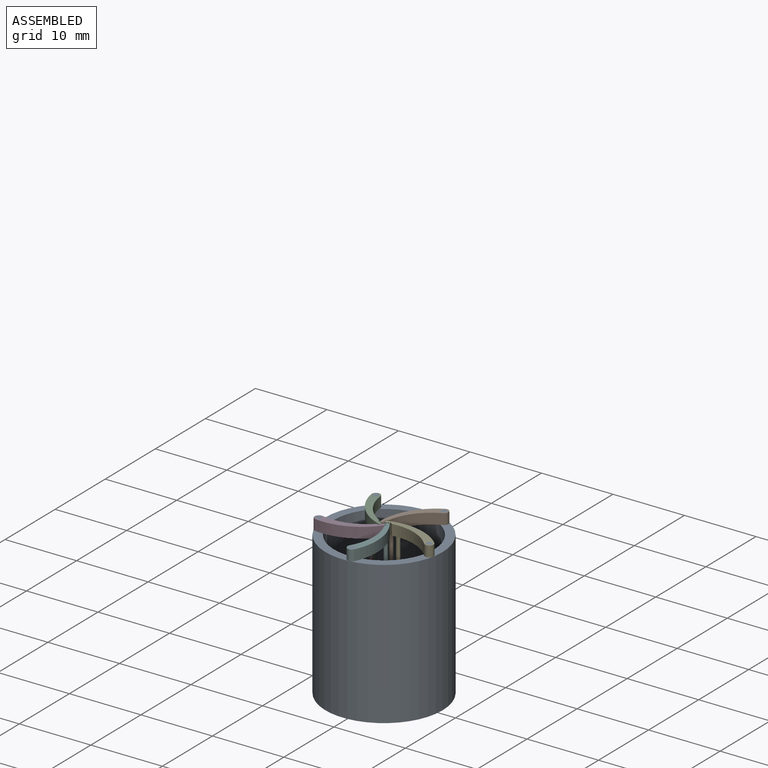
[diagram: assembled view]
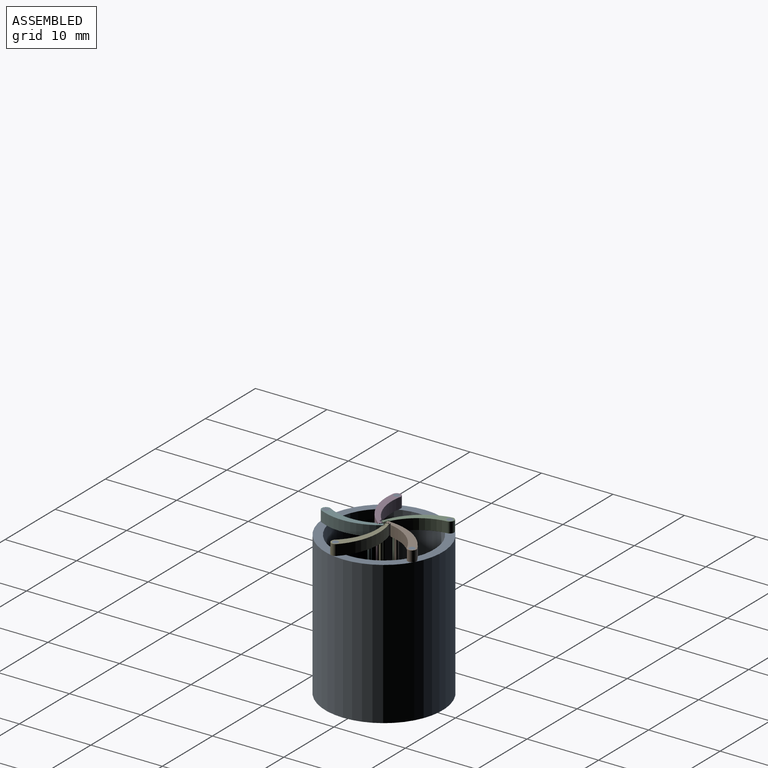
[diagram: assembled view, second angle]
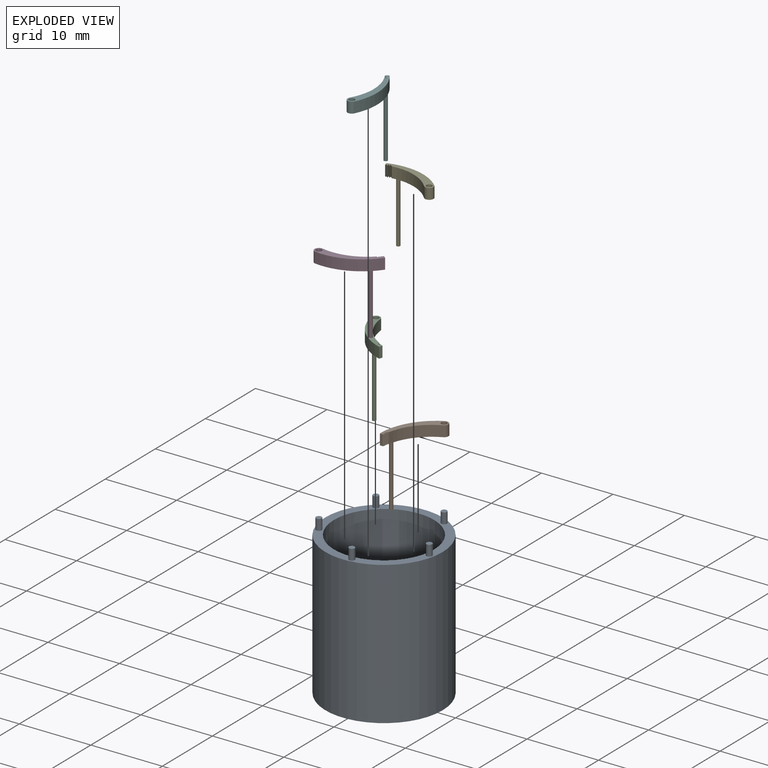
[diagram: exploded view]
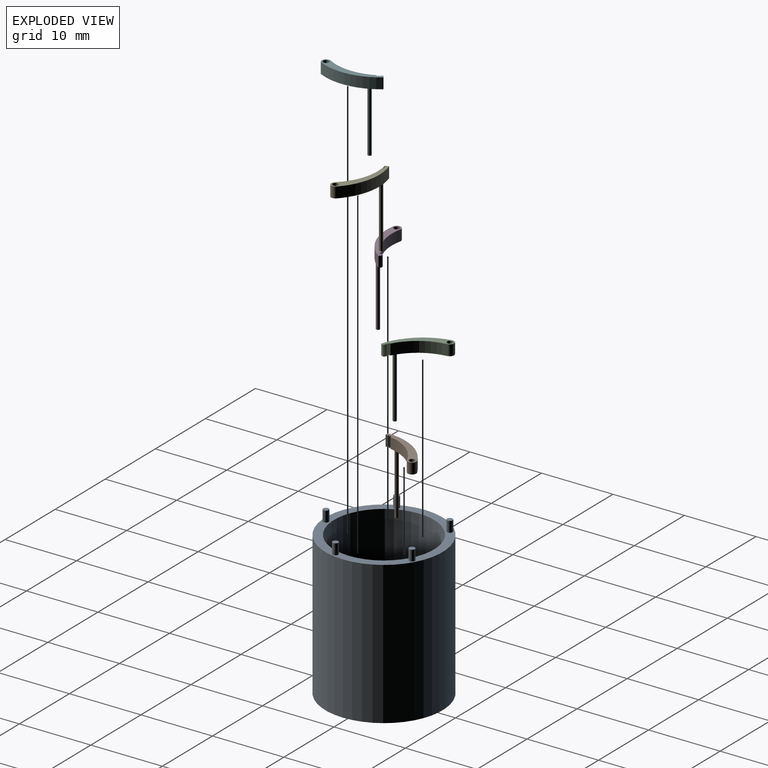
[diagram: exploded view, second angle]
ASSEMBLY  parts=6 mates=5
PART A: 14 faces, bbox 16.4x16.4x21.5 mm
  f0: cylinder r=7mm len=20mm, axis (0,0,1), area 879.6mm2, adj f2,f3
  f1: cylinder r=8.2mm len=20mm, axis (0,0,1), area 1030.4mm2, adj f2,f3
  f2: plane 16.4x16.4mm, normal (0,0,-1), area 57.3mm2, adj f0,f1
  f3: plane 16.4x16.4mm, normal (0,0,1), area 54.8mm2, adj f0,f1,f4,f6,f8,f10,f12
  f4: cylinder r=0.4mm len=1.5mm, axis (0,0,-1), area 3.8mm2, adj f3,f5
  f5: plane 0.8x0.8mm, normal (0,0,1), area 0.5mm2, adj f4
  f6: cylinder r=0.4mm len=1.5mm, axis (0,0,-1), area 3.8mm2, adj f3,f7
  f7: plane 0.8x0.8mm, normal (0,0,1), area 0.5mm2, adj f6
  f8: cylinder r=0.4mm len=1.5mm, axis (0,0,-1), area 3.8mm2, adj f3,f9
  f9: plane 0.8x0.8mm, normal (0,0,1), area 0.5mm2, adj f8
  f10: cylinder r=0.4mm len=1.5mm, axis (0,0,-1), area 3.8mm2, adj f3,f11
  f11: plane 0.8x0.8mm, normal (0,0,1), area 0.5mm2, adj f10
  f12: cylinder r=0.4mm len=1.5mm, axis (0,0,-1), area 3.8mm2, adj f3,f13
  f13: plane 0.8x0.8mm, normal (0,0,1), area 0.5mm2, adj f12
PART B: 17 faces, bbox 8.5x1.9x10 mm
  f0: cylinder r=7.87mm len=8.13mm, axis (0,0,-1), area 12.9mm2, adj f1,f12,f13,f14
  f1: plane 1.5x0.04mm, normal (-0.59,0.8,0), area 0.1mm2, adj f0,f2,f13,f14
  f2: plane 1.5x0.33mm, normal (-0.84,-0.55,0), area 0.6mm2, adj f1,f3,f13,f14
  f3: plane 1.5x0.19mm, normal (-0.29,-0.96,0), area 0.3mm2, adj f2,f4,f13,f14
  f4: plane 1.5x0.16mm, normal (0.84,0.55,0), area 0.3mm2, adj f3,f5,f13,f14
  f5: plane 1.5x0.31mm, normal (-0.13,-0.99,0), area 0.5mm2, adj f4,f6,f13,f14
  f6: plane 1.5x0.27mm, normal (0.87,0.49,0), area 0.5mm2, adj f5,f7,f13,f14
  f7: plane 1.5x0.37mm, normal (-0.37,-0.93,0), area 0.6mm2, adj f6,f8,f13,f14
  f8: plane 1.5x0.28mm, normal (0.89,0.46,0), area 0.5mm2, adj f7,f9,f13,f14
  f9: plane 1.5x0.38mm, normal (-0.38,-0.92,0), area 0.6mm2, adj f8,f10,f13,f14
  f10: cylinder r=7mm len=6.5mm, axis (0,0,-1), area 10.2mm2, adj f9,f12,f13,f14
  f11: cylinder r=0.4mm len=1.5mm, axis (0,0,-1), area 3.8mm2, adj f13,f14
  f12: cylinder r=0.6mm len=1.5mm, axis (0,0,-1), area 2.8mm2, adj f0,f10,f13,f14
  f13: plane 8.47x1.94mm, normal (0,0,1), area 7mm2, adj f0,f1,f2,f3,f4,f5,f6,f7
  f14: plane 8.47x1.94mm, normal (0,0,-1), area 6.9mm2, adj f0,f1,f2,f3,f4,f5,f6,f7
  f15: cylinder r=0.25mm len=8.5mm, axis (0,0,1), area 13.4mm2, adj f14,f16
  f16: plane 0.5x0.5mm, normal (0,0,-1), area 0.2mm2, adj f15
PART C: same geometry as B
PART D: same geometry as B
PART E: same geometry as B
PART F: same geometry as B
PLACE A at identity fixed
PLACE B rot(axis=(0,0,1),54deg) t=(6.89,-0.36,0)mm
PLACE C rot(axis=(0,0,1),126deg) t=(2.47,6.44,0)mm
PLACE D rot(axis=(0,0,-1),162deg) t=(-5.36,4.34,0)mm
PLACE E rot(axis=(0,0,-1),18deg) t=(1.79,-6.67,0)mm
PLACE F rot(axis=(0,0,-1),90deg) t=(-5.79,-3.76,0)mm
MATE cylindrical E.f11 <-> A.f12  axis (0,0,1) through (7.43,-1.58,1.5)mm
MATE cylindrical C.f11 <-> A.f6  axis (0,0,1) through (-5.09,5.65,1.5)mm
MATE cylindrical D.f11 <-> A.f8  axis (0,0,1) through (-6.94,-3.09,1.5)mm
MATE cylindrical F.f11 <-> A.f10  axis (0,0,1) through (0.79,-7.56,1.5)mm
MATE cylindrical B.f11 <-> A.f4  axis (0,0,1) through (3.8,6.58,1.5)mm
